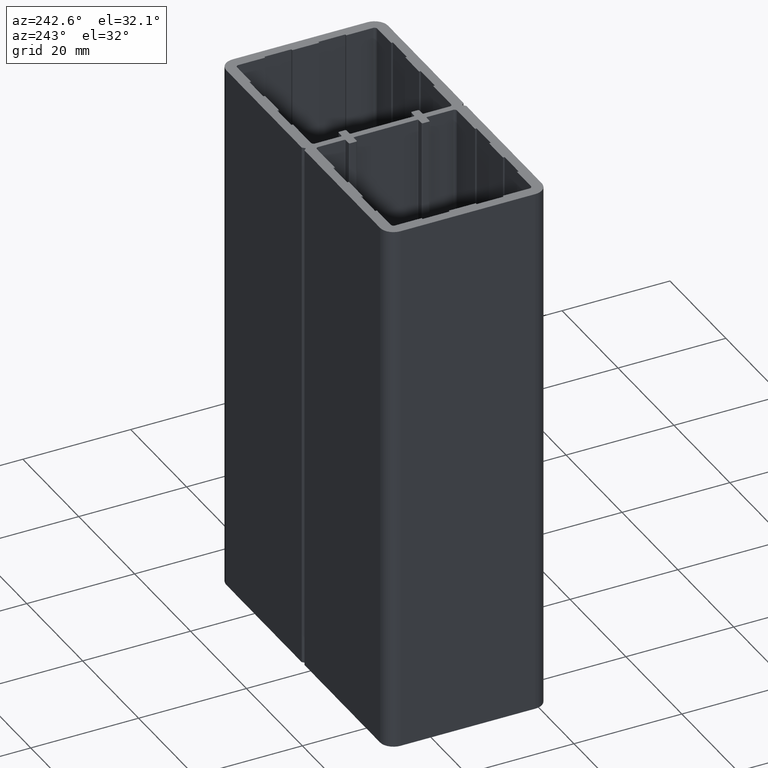
[diagram: clean part render]
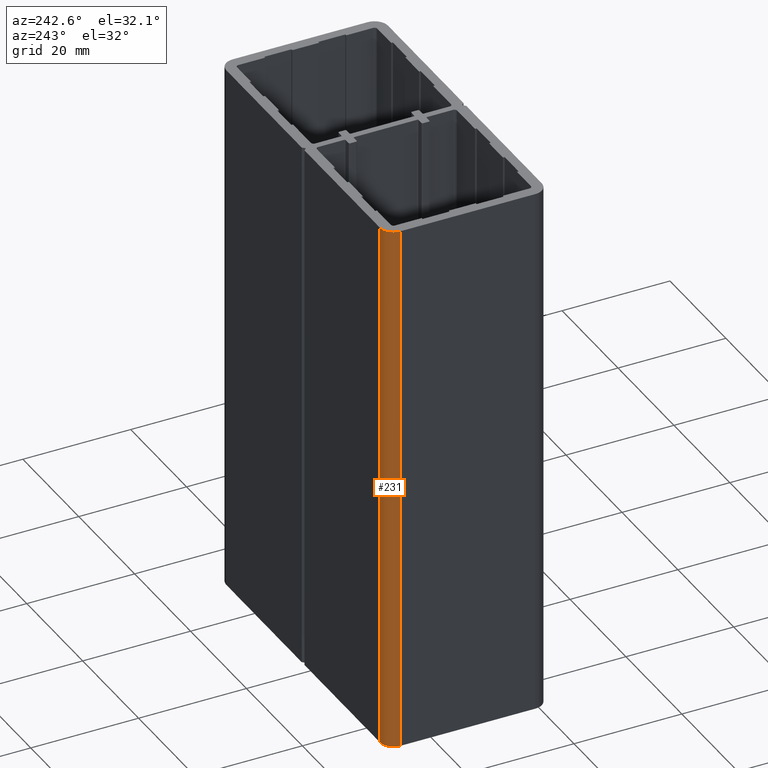
[diagram: same view with one face highlighted and labeled with its STEP entity id]
A machine part, auxiliary view. The second image highlights one B-rep face of the part: STEP entity #231.
In plain terms, the highlighted cylindrical surface (edge-blend (fillet) strip) has radius 2.5 mm, axis along (0, 0, 1).
Its self-contained STEP definition (entity closure, byte-faithful):
#173=CARTESIAN_POINT('',(-27.499999999987381,29.499999999970100,0.0));
#174=VERTEX_POINT('',#173);
#181=CARTESIAN_POINT('',(-27.499999999987381,29.499999999970100,100.0));
#182=VERTEX_POINT('',#181);
#183=CARTESIAN_POINT('',(-27.499999999987381,29.499999999970100,0.0));
#184=DIRECTION('',(0.0,0.0,1.0));
#185=VECTOR('',#184,100.0);
#186=LINE('',#183,#185);
#187=EDGE_CURVE('',#174,#182,#186,.T.);
#199=CARTESIAN_POINT('',(-27.499999999987381,26.999999999972601,0.0));
#200=DIRECTION('',(0.0,0.0,1.0));
#201=DIRECTION('',(1.0,0.0,0.0));
#202=AXIS2_PLACEMENT_3D('',#199,#200,#201);
#203=CYLINDRICAL_SURFACE('',#202,2.499999999997500);
#204=CARTESIAN_POINT('',(-29.999999999984993,26.999999999972601,0.0));
#205=VERTEX_POINT('',#204);
#206=CARTESIAN_POINT('',(-27.499999999987381,26.999999999972601,0.0));
#207=DIRECTION('',(0.0,0.0,1.0));
#208=DIRECTION('',(1.0,0.0,0.0));
#209=AXIS2_PLACEMENT_3D('',#206,#207,#208);
#210=CIRCLE('',#209,2.499999999997500);
#211=EDGE_CURVE('',#174,#205,#210,.T.);
#212=ORIENTED_EDGE('',*,*,#211,.T.);
#213=CARTESIAN_POINT('',(-29.999999999984993,26.999999999972601,100.0));
#214=VERTEX_POINT('',#213);
#215=CARTESIAN_POINT('',(-29.999999999984993,26.999999999972601,0.0));
#216=DIRECTION('',(0.0,0.0,1.0));
#217=VECTOR('',#216,100.0);
#218=LINE('',#215,#217);
#219=EDGE_CURVE('',#205,#214,#218,.T.);
#220=ORIENTED_EDGE('',*,*,#219,.T.);
#221=CARTESIAN_POINT('',(-27.499999999987381,26.999999999972601,100.0));
#222=DIRECTION('',(0.0,0.0,1.0));
#223=DIRECTION('',(1.0,0.0,0.0));
#224=AXIS2_PLACEMENT_3D('',#221,#222,#223);
#225=CIRCLE('',#224,2.499999999997500);
#226=EDGE_CURVE('',#182,#214,#225,.T.);
#227=ORIENTED_EDGE('',*,*,#226,.F.);
#228=ORIENTED_EDGE('',*,*,#187,.F.);
#229=EDGE_LOOP('',(#212,#220,#227,#228));
#230=FACE_OUTER_BOUND('',#229,.T.);
#231=ADVANCED_FACE('',(#230),#203,.T.);